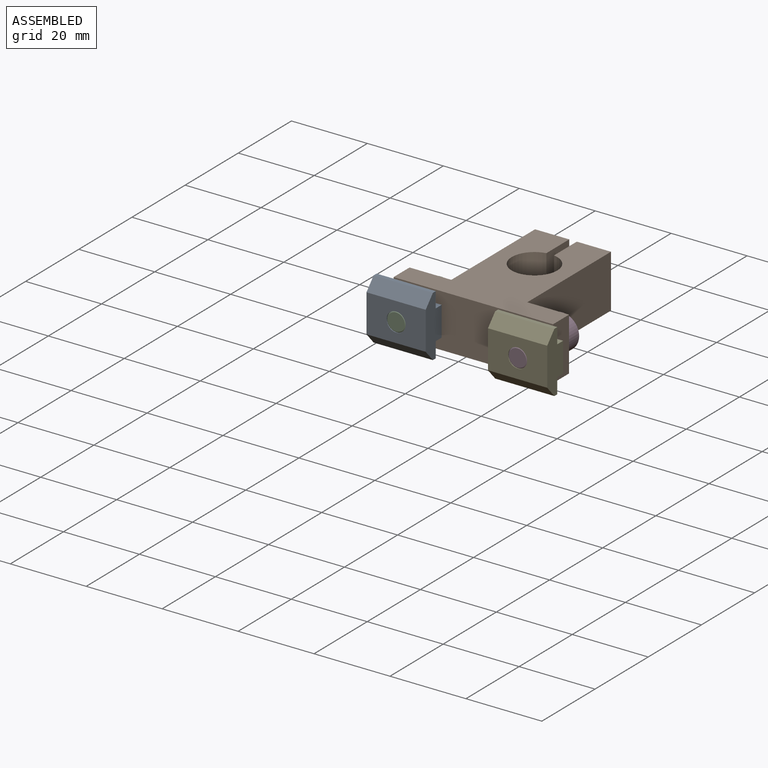
[diagram: assembled view]
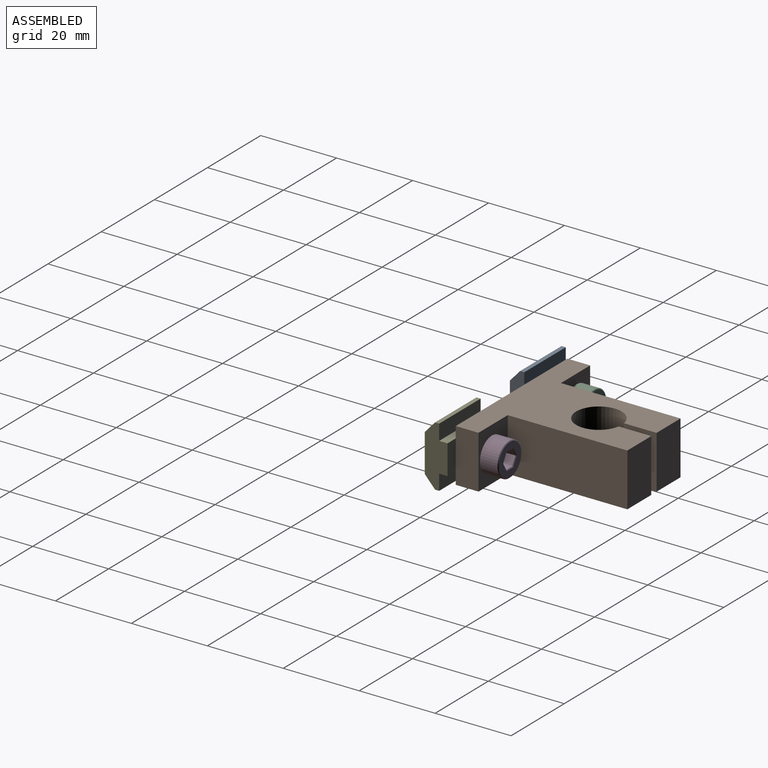
[diagram: assembled view, second angle]
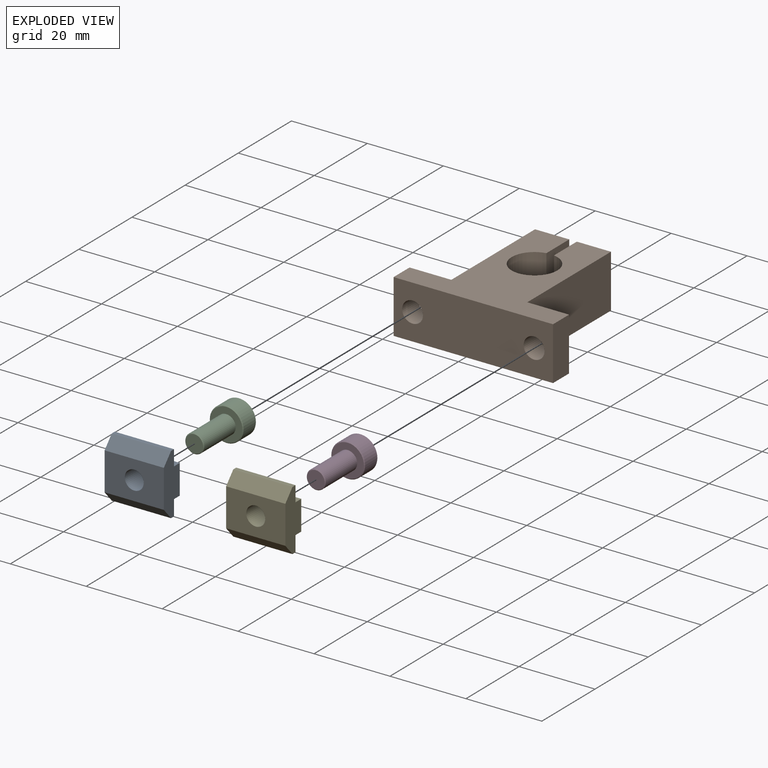
[diagram: exploded view]
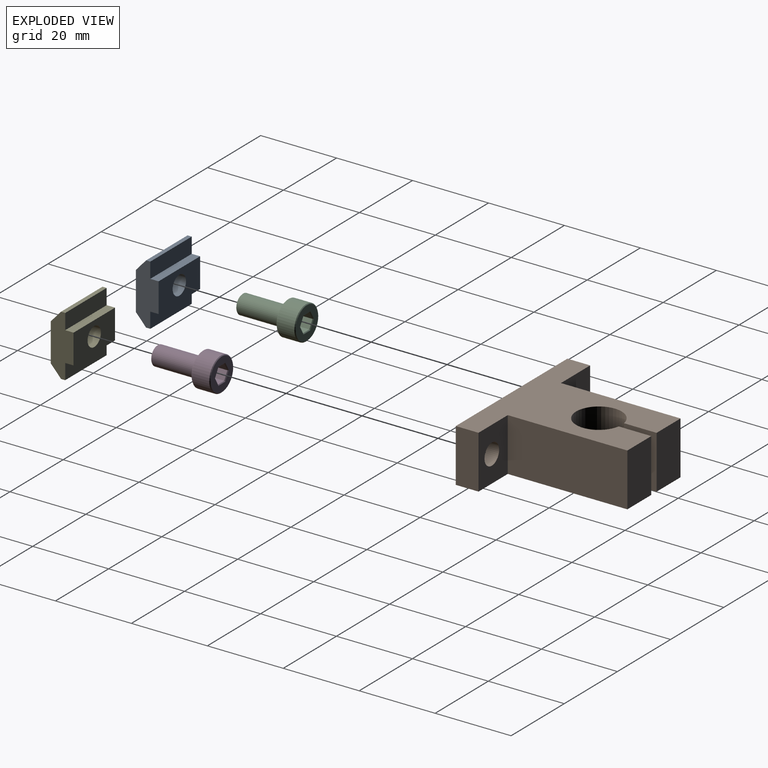
[diagram: exploded view, second angle]
ASSEMBLY  parts=5 mates=4
PART A: 13 faces, bbox 16x6x15.6 mm
  f0: plane 15.6x2.2mm, normal (1,0,0), area 34.3mm2, adj f1,f9,f10,f11
  f1: plane 15.6x7.8mm, normal (0,1,0), area 102mm2, adj f0,f2,f10,f11,f12
  f2: plane 15.6x2.2mm, normal (-1,0,0), area 34.3mm2, adj f1,f3,f10,f11
  f3: plane 15.6x4.1mm, normal (0,1,0), area 64mm2, adj f2,f4,f10,f11
  f4: plane 15.6x1.1mm, normal (-1,0,0), area 17.2mm2, adj f3,f5,f10,f11
  f5: plane 15.6x3mm, normal (-0.67,-0.74,0), area 63mm2, adj f4,f6,f10,f11
  f6: plane 15.6x10mm, normal (0,-1,0), area 136.4mm2, adj f5,f7,f10,f11,f12
  f7: plane 15.6x3mm, normal (0.67,-0.74,0), area 63mm2, adj f6,f8,f10,f11
  f8: plane 15.6x1.1mm, normal (1,0,0), area 17.2mm2, adj f7,f9,f10,f11
  f9: plane 15.6x4.1mm, normal (0,1,0), area 64mm2, adj f0,f8,f10,f11
  f10: plane 16x6mm, normal (0,0,1), area 69.9mm2, adj f0,f1,f2,f3,f4,f5,f6,f7
  f11: plane 16x6mm, normal (0,0,-1), area 69.9mm2, adj f0,f1,f2,f3,f4,f5,f6,f7
  f12: cylinder r=2.5mm len=6mm, axis (0,1,0), area 94.2mm2, adj f1,f6
PART B: 16 faces, bbox 42x37.5x14 mm
  f0: cylinder r=6mm len=14mm, axis (0,0,-1), area 499.7mm2, adj f1,f11,f12,f13
  f1: plane 14x8.58mm, normal (1,0,0), area 120.2mm2, adj f0,f2,f12,f13
  f2: plane 14x9mm, normal (0,1,0), area 126mm2, adj f1,f3,f12,f13
  f3: plane 31.5x14mm, normal (-1,0,0), area 441mm2, adj f2,f4,f12,f13
  f4: plane 14x11mm, normal (0,1,0), area 130.2mm2, adj f3,f5,f12,f13,f15
  f5: plane 14x6mm, normal (-1,0,0), area 84mm2, adj f4,f6,f12,f13
  f6: plane 42x14mm, normal (0,-1,0), area 540.5mm2, adj f5,f7,f12,f13,f14,f15
  f7: plane 14x6mm, normal (1,0,0), area 84mm2, adj f6,f8,f12,f13
  f8: plane 14x11mm, normal (0,1,0), area 130.2mm2, adj f7,f9,f12,f13,f14
  f9: plane 31.5x14mm, normal (1,0,0), area 441mm2, adj f8,f10,f12,f13
  f10: plane 14x9mm, normal (0,1,0), area 126mm2, adj f9,f11,f12,f13
  f11: plane 14x8.58mm, normal (-1,0,0), area 120.2mm2, adj f0,f10,f12,f13
  f12: plane 42x37.5mm, normal (0,0,1), area 751.8mm2, adj f0,f1,f2,f3,f4,f5,f6,f7
  f13: plane 42x37.5mm, normal (0,0,-1), area 751.8mm2, adj f0,f1,f2,f3,f4,f5,f6,f7
  f14: cylinder r=2.75mm len=6mm, axis (0,-1,0), area 103.7mm2, adj f6,f8
  f15: cylinder r=2.75mm len=6mm, axis (0,-1,0), area 103.7mm2, adj f4,f6
PART C: 21 faces, bbox 8.9x8.9x17 mm
  f0: plane 3.8x2.37mm, normal (0,-1,0), area 9mm2, adj f1,f5,f8,f17
  f1: plane 3.8x2.05mm, normal (-0.87,-0.5,0), area 9mm2, adj f0,f2,f8,f18
  f2: plane 3.8x2.05mm, normal (-0.87,0.5,0), area 9mm2, adj f1,f3,f8,f16
  f3: plane 3.8x2.37mm, normal (0,1,0), area 9mm2, adj f2,f4,f8,f14
  f4: plane 3.8x2.05mm, normal (0.87,0.5,0), area 9mm2, adj f3,f5,f8,f13
  f5: plane 3.8x2.05mm, normal (0.87,-0.5,0), area 9mm2, adj f0,f4,f8,f15
  f6: cylinder r=4.45mm len=8.9mm, axis (0,0,-1), area 128.6mm2, adj f12,f19
  f7: plane 8.5x8.5mm, normal (0,0,-1), area 39.2mm2, adj f13,f14,f15,f16,f17,f18,f19
  f8: plane 4.73x4.1mm, normal (0,0,-1), area 14.6mm2, adj f0,f1,f2,f3,f4,f5
  f9: plane 8.5x8.5mm, normal (0,0,1), area 37.1mm2, adj f10,f12
  f10: cylinder r=2.5mm len=11.8mm, axis (0,0,-1), area 185.4mm2, adj f9,f20
  f11: plane 4.6x4.6mm, normal (0,0,1), area 16.6mm2, adj f20
  f12: cone r=4.25mm half-angle=45deg, axis (0,0,-1), area 7.7mm2, adj f6,f9
  f13: plane 2.25x1.41mm, normal (0.61,0.35,-0.71), area 0.7mm2, adj f4,f7,f14,f15
  f14: plane 2.6x0.2mm, normal (0,0.71,-0.71), area 0.7mm2, adj f3,f7,f13,f16
  f15: plane 2.25x1.41mm, normal (0.61,-0.35,-0.71), area 0.7mm2, adj f5,f7,f13,f17
  f16: plane 2.25x1.41mm, normal (-0.61,0.35,-0.71), area 0.7mm2, adj f2,f7,f14,f18
  f17: plane 2.6x0.2mm, normal (0,-0.71,-0.71), area 0.7mm2, adj f0,f7,f15,f18
  f18: plane 2.25x1.41mm, normal (-0.61,-0.35,-0.71), area 0.7mm2, adj f1,f7,f16,f17
  f19: cone r=4.45mm half-angle=45deg, axis (0,0,1), area 7.7mm2, adj f6,f7
  f20: cone r=2.3mm half-angle=45deg, axis (0,0,-1), area 4.3mm2, adj f10,f11
PART D: same geometry as C
PART E: same geometry as A
PLACE A rot(axis=(0,1,0),90deg) t=(0.66,25,-46.76)mm
PLACE B t=(-14.22,-0.45,-1.2)mm
PLACE C rot(axis=(1,0,0),90deg) t=(-24.26,10.04,-2.29)mm
PLACE D rot(axis=(1,0,0),90deg) t=(7.74,10.04,-2.29)mm
PLACE E rot(axis=(0,1,0),90deg) t=(32.66,25,-46.76)mm
MATE fastened A.f12 <-> C.f6  axis (0,-1,0) through (8.46,-6.96,5.8)mm
MATE fastened C.f6 <-> B.f15  axis (0,-1,0) through (8.46,5.24,5.8)mm
MATE fastened E.f12 <-> D.f6  axis (0,-1,0) through (40.46,-6.96,5.8)mm
MATE fastened D.f6 <-> B.f14  axis (0,-1,0) through (40.46,5.24,5.8)mm
